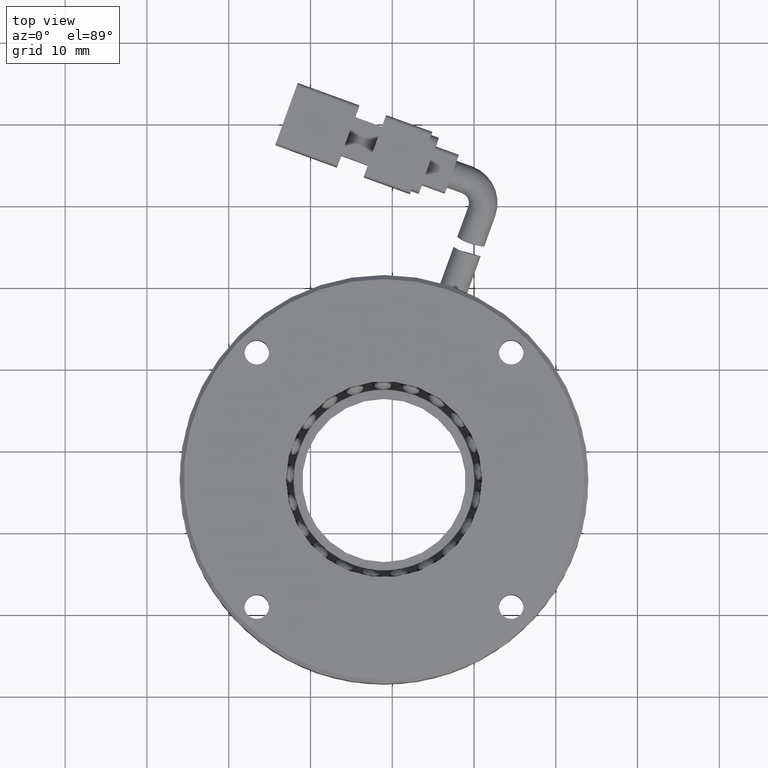
[diagram: clean part render]
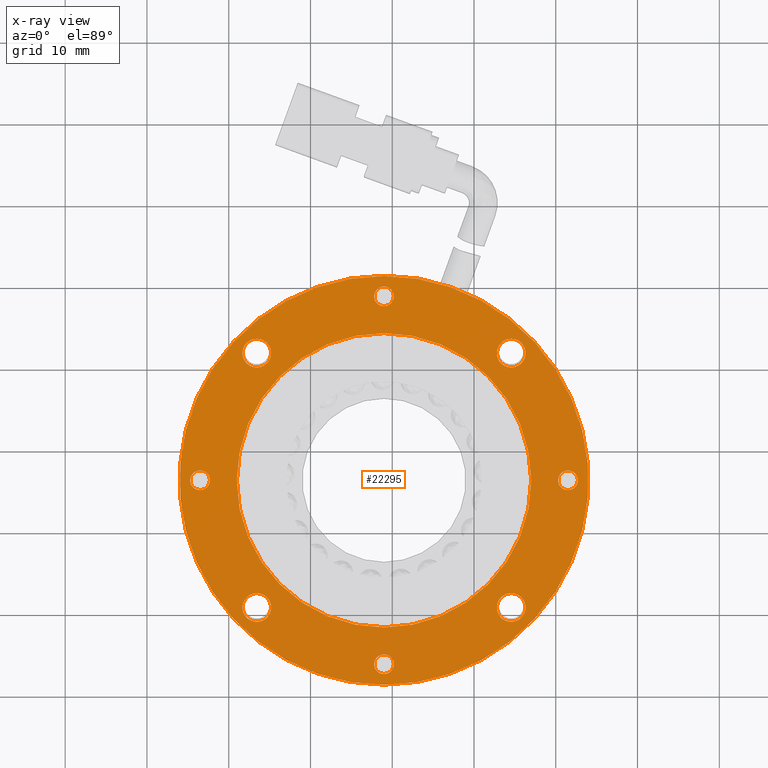
[diagram: x-ray — body ghosted, one internal face saturated and labeled with its STEP entity id]
A machine part, top view, then the same camera in x-ray: the body is ghosted and one INTERNAL B-rep face — a face not visible from any outside direction — is saturated and labeled: STEP entity #22295.
In plain terms, the highlighted planar face has unit normal (-0, -0, -1).
Its self-contained STEP definition (entity closure, byte-faithful):
#19 = FACE_BOUND ( 'NONE', #919, .T. ) ;
#121 = CARTESIAN_POINT ( 'NONE',  ( -121.0083944312394000, 24.46072502546472900, -3.499999999999940500 ) ) ;
#337 = EDGE_CURVE ( 'NONE', #18962, #10794, #3447, .T. ) ;
#383 = DIRECTION ( 'NONE',  ( 0.0000000000000000000, 1.000000000000000000, 0.0000000000000000000 ) ) ;
#494 = ORIENTED_EDGE ( 'NONE', *, *, #9855, .T. ) ;
#529 = EDGE_CURVE ( 'NONE', #762, #14074, #19993, .T. ) ;
#532 = ORIENTED_EDGE ( 'NONE', *, *, #6228, .T. ) ;
#662 = FACE_BOUND ( 'NONE', #20128, .T. ) ;
#762 = VERTEX_POINT ( 'NONE', #11751 ) ;
#770 = ORIENTED_EDGE ( 'NONE', *, *, #22849, .T. ) ;
#813 = VERTEX_POINT ( 'NONE', #7788 ) ;
#919 = EDGE_LOOP ( 'NONE', ( #22049, #494 ) ) ;
#958 = DIRECTION ( 'NONE',  ( -1.278084676573917400E-047, 0.0000000000000000000, -1.000000000000000000 ) ) ;
#1025 = DIRECTION ( 'NONE',  ( -1.278084676573917400E-047, 0.0000000000000000000, -1.000000000000000000 ) ) ;
#1357 = CIRCLE ( 'NONE', #5896, 1.199999999999999700 ) ;
#1423 = CARTESIAN_POINT ( 'NONE',  ( -143.5083944312394000, 6.460725025464570100, -3.499999999999940500 ) ) ;
#1509 = AXIS2_PLACEMENT_3D ( 'NONE', #18889, #6688, #20957 ) ;
#1572 = CIRCLE ( 'NONE', #4245, 1.749999999999994700 ) ;
#1679 = EDGE_CURVE ( 'NONE', #14074, #762, #25467, .T. ) ;
#2374 = AXIS2_PLACEMENT_3D ( 'NONE', #21127, #8895, #23180 ) ;
#2434 = VERTEX_POINT ( 'NONE', #3375 ) ;
#2450 = ORIENTED_EDGE ( 'NONE', *, *, #1679, .T. ) ;
#2671 = CARTESIAN_POINT ( 'NONE',  ( -121.0083944312394000, 6.460725025464729900, -3.499999999999940500 ) ) ;
#2678 = AXIS2_PLACEMENT_3D ( 'NONE', #10714, #25009, #12792 ) ;
#2724 = CARTESIAN_POINT ( 'NONE',  ( -121.0083944312394000, 6.460725025464729900, -3.499999999999940500 ) ) ;
#3321 = EDGE_LOOP ( 'NONE', ( #7791, #22149 ) ) ;
#3375 = CARTESIAN_POINT ( 'NONE',  ( -105.4520452451351500, -7.345624160639128600, -3.499999999999940500 ) ) ;
#3377 = ORIENTED_EDGE ( 'NONE', *, *, #8297, .F. ) ;
#3447 = CIRCLE ( 'NONE', #10055, 1.749999999999994700 ) ;
#3585 = AXIS2_PLACEMENT_3D ( 'NONE', #20433, #8190, #22480 ) ;
#3611 = DIRECTION ( 'NONE',  ( 0.0000000000000000000, 1.000000000000000000, 0.0000000000000000000 ) ) ;
#3817 = CARTESIAN_POINT ( 'NONE',  ( -121.0083944312394800, 28.96072502546472200, -3.499999999999940500 ) ) ;
#3845 = DIRECTION ( 'NONE',  ( -1.278084676573917400E-047, 0.0000000000000000000, -1.000000000000000000 ) ) ;
#3973 = CIRCLE ( 'NONE', #5252, 1.749999999999994700 ) ;
#4202 = ORIENTED_EDGE ( 'NONE', *, *, #19437, .T. ) ;
#4245 = AXIS2_PLACEMENT_3D ( 'NONE', #24764, #12547, #383 ) ;
#4295 = CARTESIAN_POINT ( 'NONE',  ( -105.4520452451353800, 22.01707421156880100, -3.499999999999940500 ) ) ;
#4423 = DIRECTION ( 'NONE',  ( -1.278084676573917400E-047, 0.0000000000000000000, -1.000000000000000000 ) ) ;
#4708 = DIRECTION ( 'NONE',  ( -1.278084676573917700E-047, 1.000000000000000000, 1.633500440493055000E-094 ) ) ;
#4763 = EDGE_CURVE ( 'NONE', #11753, #6327, #26441, .T. ) ;
#4765 = DIRECTION ( 'NONE',  ( 0.0000000000000000000, -1.000000000000000000, 0.0000000000000000000 ) ) ;
#4931 = AXIS2_PLACEMENT_3D ( 'NONE', #13202, #1025, #15240 ) ;
#4936 = ORIENTED_EDGE ( 'NONE', *, *, #21433, .T. ) ;
#5248 = CARTESIAN_POINT ( 'NONE',  ( -136.5647436173433100, -10.84562416063945100, -3.499999999999940500 ) ) ;
#5252 = AXIS2_PLACEMENT_3D ( 'NONE', #16615, #4423, #18671 ) ;
#5413 = FACE_BOUND ( 'NONE', #11129, .T. ) ;
#5592 = ORIENTED_EDGE ( 'NONE', *, *, #19279, .T. ) ;
#5777 = AXIS2_PLACEMENT_3D ( 'NONE', #2724, #16955, #4765 ) ;
#5803 = EDGE_CURVE ( 'NONE', #813, #6515, #14426, .T. ) ;
#5856 = DIRECTION ( 'NONE',  ( 0.0000000000000000000, 1.000000000000000000, 0.0000000000000000000 ) ) ;
#5896 = AXIS2_PLACEMENT_3D ( 'NONE', #13135, #958, #15176 ) ;
#5933 = VERTEX_POINT ( 'NONE', #21927 ) ;
#6046 = FACE_OUTER_BOUND ( 'NONE', #20097, .T. ) ;
#6071 = DIRECTION ( 'NONE',  ( 1.278084676573917400E-047, -0.0000000000000000000, 1.000000000000000000 ) ) ;
#6151 = CIRCLE ( 'NONE', #3585, 1.749999999999994700 ) ;
#6228 = EDGE_CURVE ( 'NONE', #22021, #10504, #21403, .T. ) ;
#6326 = DIRECTION ( 'NONE',  ( 0.0000000000000000000, 1.000000000000000000, 0.0000000000000000000 ) ) ;
#6327 = VERTEX_POINT ( 'NONE', #121 ) ;
#6515 = VERTEX_POINT ( 'NONE', #6864 ) ;
#6611 = EDGE_CURVE ( 'NONE', #18006, #8573, #13486, .T. ) ;
#6688 = DIRECTION ( 'NONE',  ( -1.278084676573917400E-047, 0.0000000000000000000, -1.000000000000000000 ) ) ;
#6864 = CARTESIAN_POINT ( 'NONE',  ( -121.0083944312394800, 30.16072502546472100, -3.499999999999940500 ) ) ;
#6892 = VERTEX_POINT ( 'NONE', #18593 ) ;
#7307 = CARTESIAN_POINT ( 'NONE',  ( -121.0083944312394000, -11.53927497453527300, -3.499999999999940500 ) ) ;
#7396 = CARTESIAN_POINT ( 'NONE',  ( -143.5083944312394000, 6.460725025464570100, -3.499999999999940500 ) ) ;
#7445 = CIRCLE ( 'NONE', #13316, 1.199999999999999700 ) ;
#7661 = ORIENTED_EDGE ( 'NONE', *, *, #18428, .T. ) ;
#7699 = AXIS2_PLACEMENT_3D ( 'NONE', #1423, #13337, #3611 ) ;
#7788 = CARTESIAN_POINT ( 'NONE',  ( -121.0083944312394800, 27.76072502546471900, -3.499999999999940500 ) ) ;
#7791 = ORIENTED_EDGE ( 'NONE', *, *, #4763, .F. ) ;
#7942 = AXIS2_PLACEMENT_3D ( 'NONE', #9788, #24068, #11846 ) ;
#8190 = DIRECTION ( 'NONE',  ( -1.278084676573917400E-047, 0.0000000000000000000, -1.000000000000000000 ) ) ;
#8287 = EDGE_LOOP ( 'NONE', ( #20406, #4202 ) ) ;
#8297 = EDGE_CURVE ( 'NONE', #8573, #18006, #11016, .T. ) ;
#8573 = VERTEX_POINT ( 'NONE', #21949 ) ;
#8666 = CARTESIAN_POINT ( 'NONE',  ( -136.5647436173435400, 20.26707421156870100, -3.499999999999940500 ) ) ;
#8865 = EDGE_CURVE ( 'NONE', #22789, #21628, #7445, .T. ) ;
#8895 = DIRECTION ( 'NONE',  ( -1.278084676573917400E-047, 0.0000000000000000000, -1.000000000000000000 ) ) ;
#8936 = DIRECTION ( 'NONE',  ( -1.278084676573917400E-047, 0.0000000000000000000, -1.000000000000000000 ) ) ;
#9184 = ORIENTED_EDGE ( 'NONE', *, *, #5803, .T. ) ;
#9788 = CARTESIAN_POINT ( 'NONE',  ( -98.50839443123941000, 6.460725025464729900, -3.499999999999940500 ) ) ;
#9855 = EDGE_CURVE ( 'NONE', #26285, #15947, #3973, .T. ) ;
#9950 = CARTESIAN_POINT ( 'NONE',  ( -121.0083944312391500, -14.83927497453527200, -3.499999999999940500 ) ) ;
#10055 = AXIS2_PLACEMENT_3D ( 'NONE', #15338, #19360, #18624 ) ;
#10482 = AXIS2_PLACEMENT_3D ( 'NONE', #11216, #25498, #13270 ) ;
#10504 = VERTEX_POINT ( 'NONE', #19920 ) ;
#10522 = CIRCLE ( 'NONE', #24988, 1.749999999999994700 ) ;
#10608 = VERTEX_POINT ( 'NONE', #20282 ) ;
#10714 = CARTESIAN_POINT ( 'NONE',  ( -121.0083944312394000, 6.460725025464729900, -3.499999999999940500 ) ) ;
#10794 = VERTEX_POINT ( 'NONE', #8666 ) ;
#10810 = FACE_BOUND ( 'NONE', #17671, .T. ) ;
#11016 = CIRCLE ( 'NONE', #5777, 25.00000000000000000 ) ;
#11129 = EDGE_LOOP ( 'NONE', ( #22113, #4936 ) ) ;
#11216 = CARTESIAN_POINT ( 'NONE',  ( -121.0083944312394000, 6.460725025464729900, -3.499999999999940500 ) ) ;
#11676 = CARTESIAN_POINT ( 'NONE',  ( -143.5083944312394000, 5.260725025464570800, -3.499999999999940500 ) ) ;
#11751 = CARTESIAN_POINT ( 'NONE',  ( -143.5083944312394000, 7.660725025464570200, -3.499999999999940500 ) ) ;
#11753 = VERTEX_POINT ( 'NONE', #7307 ) ;
#11846 = DIRECTION ( 'NONE',  ( 0.0000000000000000000, 1.000000000000000000, 0.0000000000000000000 ) ) ;
#11954 = CARTESIAN_POINT ( 'NONE',  ( -105.4520452451351500, -9.095624160639122400, -3.499999999999940500 ) ) ;
#12265 = AXIS2_PLACEMENT_3D ( 'NONE', #11954, #26221, #14014 ) ;
#12547 = DIRECTION ( 'NONE',  ( -1.278084676573917400E-047, 0.0000000000000000000, -1.000000000000000000 ) ) ;
#12752 = ORIENTED_EDGE ( 'NONE', *, *, #8865, .T. ) ;
#12792 = DIRECTION ( 'NONE',  ( 0.0000000000000000000, -1.000000000000000000, 0.0000000000000000000 ) ) ;
#13135 = CARTESIAN_POINT ( 'NONE',  ( -121.0083944312391500, -16.03927497453527100, -3.499999999999940500 ) ) ;
#13202 = CARTESIAN_POINT ( 'NONE',  ( -121.0083944312394800, 28.96072502546472200, -3.499999999999940500 ) ) ;
#13270 = DIRECTION ( 'NONE',  ( 0.0000000000000000000, -1.000000000000000000, 0.0000000000000000000 ) ) ;
#13316 = AXIS2_PLACEMENT_3D ( 'NONE', #21160, #8936, #23208 ) ;
#13337 = DIRECTION ( 'NONE',  ( -1.278084676573917400E-047, 0.0000000000000000000, -1.000000000000000000 ) ) ;
#13341 = AXIS2_PLACEMENT_3D ( 'NONE', #2671, #16901, #4708 ) ;
#13372 = CARTESIAN_POINT ( 'NONE',  ( -136.5647436173435400, 23.76707421156868700, -3.499999999999940500 ) ) ;
#13486 = CIRCLE ( 'NONE', #10482, 25.00000000000000000 ) ;
#13599 = CARTESIAN_POINT ( 'NONE',  ( -121.0083944312394000, 31.46072502546472900, -3.499999999999940500 ) ) ;
#13726 = EDGE_LOOP ( 'NONE', ( #25481, #2450 ) ) ;
#14014 = DIRECTION ( 'NONE',  ( 0.0000000000000000000, 1.000000000000000000, 0.0000000000000000000 ) ) ;
#14074 = VERTEX_POINT ( 'NONE', #11676 ) ;
#14399 = CIRCLE ( 'NONE', #7942, 1.199999999999999700 ) ;
#14426 = CIRCLE ( 'NONE', #4931, 1.199999999999999700 ) ;
#14452 = ORIENTED_EDGE ( 'NONE', *, *, #6611, .F. ) ;
#14894 = CIRCLE ( 'NONE', #20173, 18.00000000000000400 ) ;
#14964 = CARTESIAN_POINT ( 'NONE',  ( -98.50839443123941000, 7.660725025464729200, -3.499999999999940500 ) ) ;
#15176 = DIRECTION ( 'NONE',  ( 0.0000000000000000000, 1.000000000000000000, 0.0000000000000000000 ) ) ;
#15240 = DIRECTION ( 'NONE',  ( 0.0000000000000000000, 1.000000000000000000, 0.0000000000000000000 ) ) ;
#15338 = CARTESIAN_POINT ( 'NONE',  ( -136.5647436173435400, 22.01707421156869400, -3.499999999999940500 ) ) ;
#15706 = AXIS2_PLACEMENT_3D ( 'NONE', #3817, #18063, #5856 ) ;
#15821 = EDGE_CURVE ( 'NONE', #6327, #11753, #14894, .T. ) ;
#15947 = VERTEX_POINT ( 'NONE', #18635 ) ;
#16039 = CARTESIAN_POINT ( 'NONE',  ( -121.0083944312391500, -16.03927497453527100, -3.499999999999940500 ) ) ;
#16158 = CIRCLE ( 'NONE', #2374, 1.749999999999992900 ) ;
#16228 = FACE_BOUND ( 'NONE', #16376, .T. ) ;
#16376 = EDGE_LOOP ( 'NONE', ( #532, #7661 ) ) ;
#16615 = CARTESIAN_POINT ( 'NONE',  ( -136.5647436173433100, -9.095624160639456300, -3.499999999999940500 ) ) ;
#16809 = PLANE ( 'NONE',  #13341 ) ;
#16890 = FACE_BOUND ( 'NONE', #3321, .T. ) ;
#16901 = DIRECTION ( 'NONE',  ( -1.278084676573917700E-047, -7.983674700015282600E-110, -1.000000000000000000 ) ) ;
#16955 = DIRECTION ( 'NONE',  ( -1.278084676573917400E-047, 0.0000000000000000000, -1.000000000000000000 ) ) ;
#17242 = CIRCLE ( 'NONE', #1509, 1.749999999999994700 ) ;
#17581 = ORIENTED_EDGE ( 'NONE', *, *, #22009, .T. ) ;
#17671 = EDGE_LOOP ( 'NONE', ( #770, #5592 ) ) ;
#18006 = VERTEX_POINT ( 'NONE', #13599 ) ;
#18063 = DIRECTION ( 'NONE',  ( -1.278084676573917400E-047, 0.0000000000000000000, -1.000000000000000000 ) ) ;
#18088 = DIRECTION ( 'NONE',  ( 0.0000000000000000000, 1.000000000000000000, 0.0000000000000000000 ) ) ;
#18192 = EDGE_LOOP ( 'NONE', ( #24705, #12752 ) ) ;
#18285 = CARTESIAN_POINT ( 'NONE',  ( -121.0083944312394000, 6.460725025464729900, -3.499999999999940500 ) ) ;
#18428 = EDGE_CURVE ( 'NONE', #10504, #22021, #1357, .T. ) ;
#18535 = DIRECTION ( 'NONE',  ( -1.278084676573917400E-047, 0.0000000000000000000, -1.000000000000000000 ) ) ;
#18593 = CARTESIAN_POINT ( 'NONE',  ( -105.4520452451353800, 20.26707421156880800, -3.499999999999940500 ) ) ;
#18624 = DIRECTION ( 'NONE',  ( 0.0000000000000000000, 1.000000000000000000, 0.0000000000000000000 ) ) ;
#18626 = DIRECTION ( 'NONE',  ( -1.278084676573917400E-047, 0.0000000000000000000, -1.000000000000000000 ) ) ;
#18635 = CARTESIAN_POINT ( 'NONE',  ( -136.5647436173433100, -7.345624160639461700, -3.499999999999940500 ) ) ;
#18671 = DIRECTION ( 'NONE',  ( 0.0000000000000000000, 1.000000000000000000, 0.0000000000000000000 ) ) ;
#18867 = AXIS2_PLACEMENT_3D ( 'NONE', #16039, #3845, #18088 ) ;
#18889 = CARTESIAN_POINT ( 'NONE',  ( -136.5647436173433100, -9.095624160639456300, -3.499999999999940500 ) ) ;
#18962 = VERTEX_POINT ( 'NONE', #13372 ) ;
#19279 = EDGE_CURVE ( 'NONE', #6892, #5933, #1572, .T. ) ;
#19360 = DIRECTION ( 'NONE',  ( -1.278084676573917400E-047, 0.0000000000000000000, -1.000000000000000000 ) ) ;
#19437 = EDGE_CURVE ( 'NONE', #10608, #2434, #16158, .T. ) ;
#19492 = CIRCLE ( 'NONE', #15706, 1.199999999999999700 ) ;
#19920 = CARTESIAN_POINT ( 'NONE',  ( -121.0083944312391500, -17.23927497453527000, -3.499999999999940500 ) ) ;
#19993 = CIRCLE ( 'NONE', #7699, 1.199999999999999700 ) ;
#20097 = EDGE_LOOP ( 'NONE', ( #3377, #14452 ) ) ;
#20128 = EDGE_LOOP ( 'NONE', ( #17581, #9184 ) ) ;
#20170 = DIRECTION ( 'NONE',  ( 0.0000000000000000000, 1.000000000000000000, 0.0000000000000000000 ) ) ;
#20173 = AXIS2_PLACEMENT_3D ( 'NONE', #18285, #6071, #20354 ) ;
#20282 = CARTESIAN_POINT ( 'NONE',  ( -105.4520452451351500, -10.84562416063911500, -3.499999999999940500 ) ) ;
#20354 = DIRECTION ( 'NONE',  ( 0.0000000000000000000, -1.000000000000000000, 0.0000000000000000000 ) ) ;
#20406 = ORIENTED_EDGE ( 'NONE', *, *, #21334, .T. ) ;
#20433 = CARTESIAN_POINT ( 'NONE',  ( -136.5647436173435400, 22.01707421156869400, -3.499999999999940500 ) ) ;
#20957 = DIRECTION ( 'NONE',  ( 0.0000000000000000000, 1.000000000000000000, 0.0000000000000000000 ) ) ;
#21060 = FACE_BOUND ( 'NONE', #8287, .T. ) ;
#21127 = CARTESIAN_POINT ( 'NONE',  ( -105.4520452451351500, -9.095624160639122400, -3.499999999999940500 ) ) ;
#21160 = CARTESIAN_POINT ( 'NONE',  ( -98.50839443123941000, 6.460725025464729900, -3.499999999999940500 ) ) ;
#21334 = EDGE_CURVE ( 'NONE', #2434, #10608, #26258, .T. ) ;
#21403 = CIRCLE ( 'NONE', #18867, 1.199999999999999700 ) ;
#21433 = EDGE_CURVE ( 'NONE', #10794, #18962, #6151, .T. ) ;
#21628 = VERTEX_POINT ( 'NONE', #14964 ) ;
#21685 = FACE_BOUND ( 'NONE', #13726, .T. ) ;
#21927 = CARTESIAN_POINT ( 'NONE',  ( -105.4520452451353800, 23.76707421156879700, -3.499999999999940500 ) ) ;
#21949 = CARTESIAN_POINT ( 'NONE',  ( -121.0083944312394000, -18.53927497453527500, -3.499999999999940500 ) ) ;
#22009 = EDGE_CURVE ( 'NONE', #6515, #813, #19492, .T. ) ;
#22021 = VERTEX_POINT ( 'NONE', #9950 ) ;
#22049 = ORIENTED_EDGE ( 'NONE', *, *, #26097, .T. ) ;
#22113 = ORIENTED_EDGE ( 'NONE', *, *, #337, .T. ) ;
#22149 = ORIENTED_EDGE ( 'NONE', *, *, #15821, .F. ) ;
#22295 = ADVANCED_FACE ( 'NONE', ( #6046, #16890, #22326, #662, #21685, #16228, #10810, #5413, #19, #21060 ), #16809, .F. ) ;
#22326 = FACE_BOUND ( 'NONE', #18192, .T. ) ;
#22480 = DIRECTION ( 'NONE',  ( 0.0000000000000000000, 1.000000000000000000, 0.0000000000000000000 ) ) ;
#22789 = VERTEX_POINT ( 'NONE', #24716 ) ;
#22849 = EDGE_CURVE ( 'NONE', #5933, #6892, #10522, .T. ) ;
#23180 = DIRECTION ( 'NONE',  ( 0.0000000000000000000, 1.000000000000000000, 0.0000000000000000000 ) ) ;
#23208 = DIRECTION ( 'NONE',  ( 0.0000000000000000000, 1.000000000000000000, 0.0000000000000000000 ) ) ;
#24068 = DIRECTION ( 'NONE',  ( -1.278084676573917400E-047, 0.0000000000000000000, -1.000000000000000000 ) ) ;
#24341 = AXIS2_PLACEMENT_3D ( 'NONE', #7396, #18626, #20170 ) ;
#24705 = ORIENTED_EDGE ( 'NONE', *, *, #25766, .T. ) ;
#24716 = CARTESIAN_POINT ( 'NONE',  ( -98.50839443123941000, 5.260725025464729800, -3.499999999999940500 ) ) ;
#24764 = CARTESIAN_POINT ( 'NONE',  ( -105.4520452451353800, 22.01707421156880100, -3.499999999999940500 ) ) ;
#24988 = AXIS2_PLACEMENT_3D ( 'NONE', #4295, #18535, #6326 ) ;
#25009 = DIRECTION ( 'NONE',  ( 1.278084676573917400E-047, -0.0000000000000000000, 1.000000000000000000 ) ) ;
#25467 = CIRCLE ( 'NONE', #24341, 1.199999999999999700 ) ;
#25481 = ORIENTED_EDGE ( 'NONE', *, *, #529, .T. ) ;
#25498 = DIRECTION ( 'NONE',  ( -1.278084676573917400E-047, 0.0000000000000000000, -1.000000000000000000 ) ) ;
#25766 = EDGE_CURVE ( 'NONE', #21628, #22789, #14399, .T. ) ;
#26097 = EDGE_CURVE ( 'NONE', #15947, #26285, #17242, .T. ) ;
#26221 = DIRECTION ( 'NONE',  ( -1.278084676573917400E-047, 0.0000000000000000000, -1.000000000000000000 ) ) ;
#26258 = CIRCLE ( 'NONE', #12265, 1.749999999999992900 ) ;
#26285 = VERTEX_POINT ( 'NONE', #5248 ) ;
#26441 = CIRCLE ( 'NONE', #2678, 18.00000000000000400 ) ;